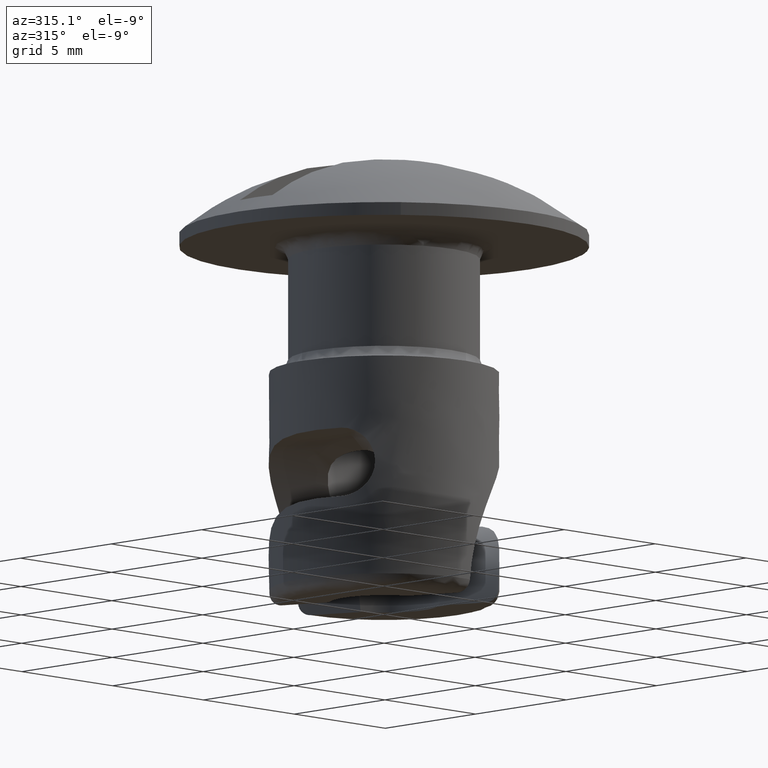
[diagram: clean part render]
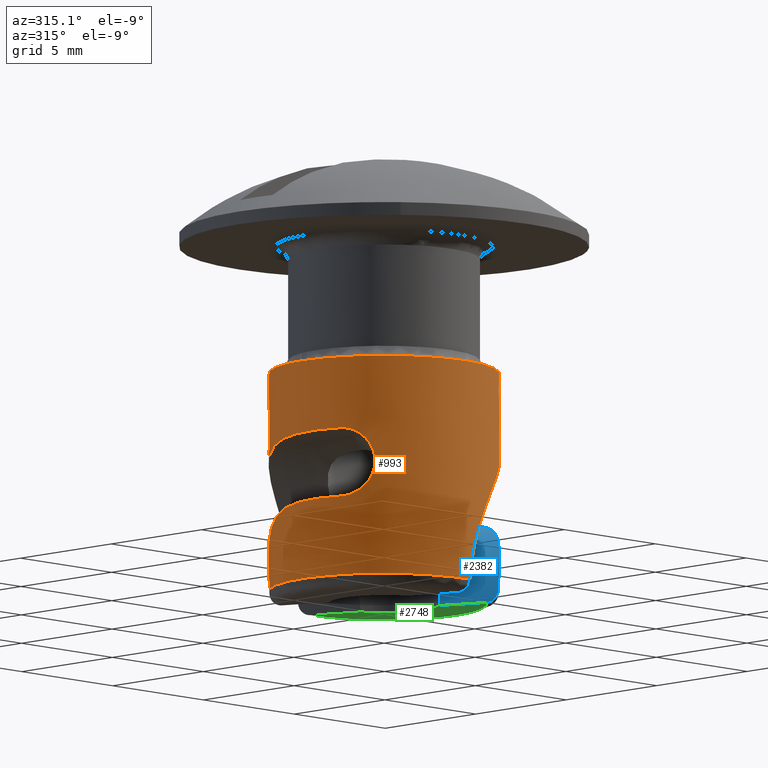
[diagram: same view with three faces highlighted in distinct colors, each labeled with its STEP entity id]
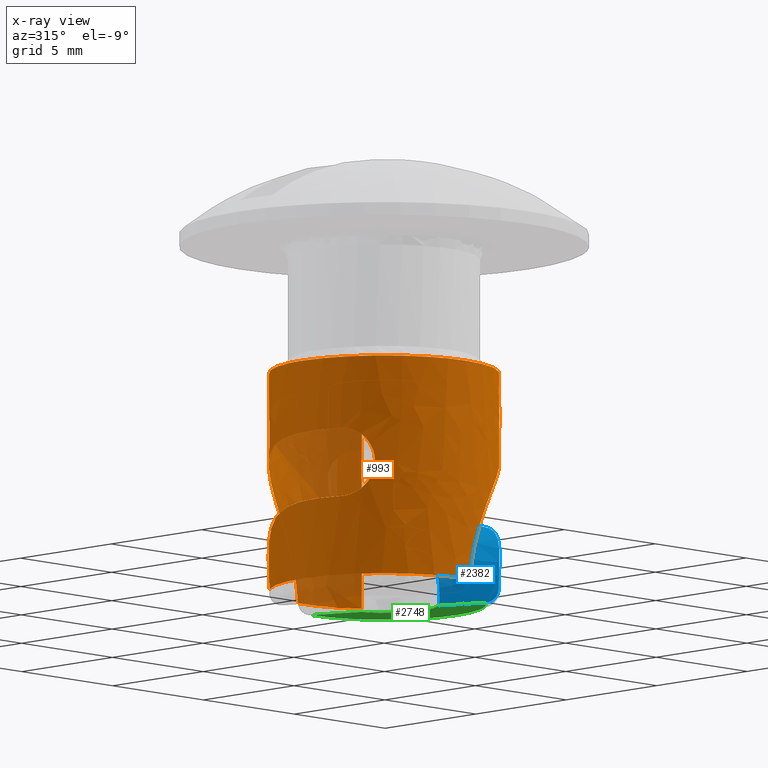
[diagram: x-ray of the same camera — body ghosted, the three highlighted faces saturated]
A machine part, auxiliary view with three faces highlighted in distinct colors.
The next image is the same camera in x-ray (body ghosted, the three faces saturated) — at least one of them is partly hidden behind the body in this view.
Their STEP definitions:

[orange] entity #993 — the highlighted face is a freeform B-spline surface patch.
#636=CARTESIAN_POINT('',(2.500424614555638,3.741373644388418,-13.815000000000005));
#637=CARTESIAN_POINT('',(2.283702444239493,3.886212813283292,-13.814999999999998));
#638=CARTESIAN_POINT('',(2.051706047068884,4.005059587124885,-13.815000000000000));
#639=CARTESIAN_POINT('',(-1.953353540056001,6.056765634193769,-13.815000000000000));
#640=CARTESIAN_POINT('',(-4.005059587124885,2.051706047068884,-13.815000000000000));
#641=CARTESIAN_POINT('',(-6.056765634193769,-1.953353540056001,-13.815000000000000));
#642=CARTESIAN_POINT('',(-2.051706047068884,-4.005059587124885,-13.815000000000000));
#643=CARTESIAN_POINT('',(1.953353540056001,-6.056765634193769,-13.815000000000000));
#644=CARTESIAN_POINT('',(4.005059587124885,-2.051706047068884,-13.815000000000000));
#645=CARTESIAN_POINT('',(2.500424614555638,3.741373644388418,-4.779624999999999));
#646=CARTESIAN_POINT('',(2.283702444239493,3.886212813283292,-4.779624999999999));
#647=CARTESIAN_POINT('',(2.051706047068884,4.005059587124885,-4.779624999999999));
#648=CARTESIAN_POINT('',(-1.953353540056001,6.056765634193769,-4.779624999999999));
#649=CARTESIAN_POINT('',(-4.005059587124885,2.051706047068884,-4.779624999999999));
#650=CARTESIAN_POINT('',(-6.056765634193769,-1.953353540056001,-4.779624999999999));
#651=CARTESIAN_POINT('',(-2.051706047068884,-4.005059587124885,-4.779624999999999));
#652=CARTESIAN_POINT('',(1.953353540056001,-6.056765634193769,-4.779624999999999));
#653=CARTESIAN_POINT('',(4.005059587124885,-2.051706047068884,-4.779624999999999));
#661=(BOUNDED_SURFACE()B_SPLINE_SURFACE(2,1,((#636,#645),(#637,#646),(#638,#647),(#639,#648),(#640,#649),(#641,#650),(#642,#651),(#643,#652),(#644,#653)),.UNSPECIFIED.,.F.,.F.,.U.)B_SPLINE_SURFACE_WITH_KNOTS((3,2,2,2,3),(2,2),(0.0,0.596467529817256,8.052311652532964,15.508155775248669,22.963999897964381),(0.0,9.035375000000002),.UNSPECIFIED.)GEOMETRIC_REPRESENTATION_ITEM()RATIONAL_B_SPLINE_SURFACE(((0.956886118190660,0.956886118190660),(0.976568542494924,0.976568542494924),(1.0,1.0),(0.707106781186548,0.707106781186548),(1.0,1.0),(0.707106781186548,0.707106781186548),(1.0,1.0),(0.707106781186548,0.707106781186548),(1.0,1.0)))REPRESENTATION_ITEM('')SURFACE());
#662=CARTESIAN_POINT('',(2.500424621410207,3.741373639807391,-13.599999999999961));
#663=VERTEX_POINT('',#662);
#664=CARTESIAN_POINT('',(-0.255835677203738,4.492721681371959,-13.600000000000000));
#665=VERTEX_POINT('',#664);
#666=CARTESIAN_POINT('',(2.500424621410207,3.741373639807391,-13.599999999999961));
#667=CARTESIAN_POINT('',(2.317893687400250,3.863373610184687,-13.599999999999911));
#668=CARTESIAN_POINT('',(1.921724138150536,4.088076606777895,-13.600000000000071));
#669=CARTESIAN_POINT('',(1.339952353562898,4.310078844276482,-13.599999999999870));
#670=CARTESIAN_POINT('',(0.609204677771750,4.481814725748259,-13.599999999999991));
#671=CARTESIAN_POINT('',(0.091854901922973,4.512593047788100,-13.599999999999969));
#672=CARTESIAN_POINT('',(-0.255835677203738,4.492721681371959,-13.600000000000000));
#673=B_SPLINE_CURVE_WITH_KNOTS('',3,(#666,#667,#668,#669,#670,#671,#672),.UNSPECIFIED.,.F.,.U.,(4,1,1,1,4),(1.925549E-009,0.658645651175664,1.362718129592707,1.862377391120710,2.907126849070455),.UNSPECIFIED.);
#674=EDGE_CURVE('',#663,#665,#673,.T.);
#675=ORIENTED_EDGE('',*,*,#674,.T.);
#676=CARTESIAN_POINT('',(-4.138067084196240,-1.768163116539770,-7.800013149771270));
#677=VERTEX_POINT('',#676);
#678=CARTESIAN_POINT('',(-4.138067084196239,-1.768163116539770,-7.800013149771282));
#679=CARTESIAN_POINT('',(-4.162120584269072,-1.711870234972437,-7.799980936402172));
#680=CARTESIAN_POINT('',(-4.185139499410874,-1.654804810093842,-7.800007726619280));
#681=CARTESIAN_POINT('',(-4.228739943453012,-1.539977298431326,-7.800182116171027));
#682=CARTESIAN_POINT('',(-4.249293794694857,-1.482305999990158,-7.800329297643393));
#683=CARTESIAN_POINT('',(-4.307279568646926,-1.308532782345519,-7.800964110782364));
#684=CARTESIAN_POINT('',(-4.341041762639190,-1.191672736446710,-7.801640629501315));
#685=CARTESIAN_POINT('',(-4.427918872501649,-0.838119586703208,-7.804698178833389));
#686=CARTESIAN_POINT('',(-4.466718190352323,-0.598471889287403,-7.808029505165068));
#687=CARTESIAN_POINT('',(-4.495625889447172,-0.232986825175194,-7.817355387114366));
#688=CARTESIAN_POINT('',(-4.500322625997480,-0.109668659982697,-7.821229586705404));
#689=CARTESIAN_POINT('',(-4.499642523005721,0.134714951679389,-7.830921266458306));
#690=CARTESIAN_POINT('',(-4.494335427102560,0.256174361046527,-7.836742732970178));
#691=CARTESIAN_POINT('',(-4.463896065566552,0.618333934121716,-7.858062208427452));
#692=CARTESIAN_POINT('',(-4.424327082497261,0.856832240254242,-7.877337504827367));
#693=CARTESIAN_POINT('',(-4.350743935625671,1.150957941420994,-7.911838674140928));
#694=CARTESIAN_POINT('',(-4.334814689617869,1.209581884264863,-7.919265392161298));
#695=CARTESIAN_POINT('',(-4.300503849941263,1.326413723055130,-7.935301400341892));
#696=CARTESIAN_POINT('',(-4.282114856965355,1.384615700621657,-7.943914657398845));
#697=CARTESIAN_POINT('',(-4.223890846989503,1.556733522258692,-7.971420175291101));
#698=CARTESIAN_POINT('',(-4.180827555734906,1.668791145467516,-7.992057946746737));
#699=CARTESIAN_POINT('',(-4.039648508606130,1.996990655673842,-8.061951742246583));
#700=CARTESIAN_POINT('',(-3.929583822020176,2.205192509550785,-8.119136251935283));
#701=CARTESIAN_POINT('',(-3.773776541470442,2.451941486598168,-8.208057012388881));
#702=CARTESIAN_POINT('',(-3.741700470887511,2.500613439011614,-8.226717228558709));
#703=CARTESIAN_POINT('',(-3.675750000041189,2.596584664978693,-8.265913419215378));
#704=CARTESIAN_POINT('',(-3.641869995164323,2.643877430368745,-8.286456191801182));
#705=CARTESIAN_POINT('',(-3.538775313720353,2.782137486352727,-8.350333165430998));
#706=CARTESIAN_POINT('',(-3.467742085032230,2.870038461614258,-8.396130262340710));
#707=CARTESIAN_POINT('',(-3.248844148161698,3.121607832311861,-8.543691025892171));
#708=CARTESIAN_POINT('',(-3.095198507710278,3.273172924070218,-8.655602838315224));
#709=CARTESIAN_POINT('',(-2.896704805394872,3.444103068284200,-8.814420091456926));
#710=CARTESIAN_POINT('',(-2.856591886879266,3.477431959422742,-8.847208277497392));
#711=CARTESIAN_POINT('',(-2.776290280585695,3.541872741717936,-8.914321510181123));
#712=CARTESIAN_POINT('',(-2.736134122483446,3.572965362421573,-8.948615439626774));
#713=CARTESIAN_POINT('',(-2.615760547592370,3.663037322603954,-9.053706294606053));
#714=CARTESIAN_POINT('',(-2.535639431553039,3.718814849784418,-9.126711032528247));
#715=CARTESIAN_POINT('',(-2.296479495805420,3.874582142714253,-9.354578910618113));
#716=CARTESIAN_POINT('',(-2.138645657105517,3.963043453159894,-9.518273065862680));
#717=CARTESIAN_POINT('',(-1.830242256679664,4.114575547994461,-9.869846666436306));
#718=CARTESIAN_POINT('',(-1.682894094861581,4.176100746619118,-10.054070370533690));
#719=CARTESIAN_POINT('',(-1.404564652593712,4.277750357035464,-10.438010981697280));
#720=CARTESIAN_POINT('',(-1.273440856920383,4.317900534791948,-10.637878852002011));
#721=CARTESIAN_POINT('',(-1.090499434697305,4.366324557798301,-10.949686213454410));
#722=CARTESIAN_POINT('',(-1.031813648960731,4.380488236283285,-11.055628109112391));
#723=CARTESIAN_POINT('',(-0.947483372539950,4.399216340140572,-11.217618955006120));
#724=CARTESIAN_POINT('',(-0.919952989225038,4.405046146309106,-11.272208084229780));
#725=CARTESIAN_POINT('',(-0.866447850351114,4.415881925065333,-11.381855236338410));
#726=CARTESIAN_POINT('',(-0.840452383810333,4.420893358609323,-11.436947718881919));
#727=CARTESIAN_POINT('',(-0.714288498860547,4.444133740423609,-11.713753923246941));
#728=CARTESIAN_POINT('',(-0.625529803047436,4.456969036458675,-11.939486281545831));
#729=CARTESIAN_POINT('',(-0.473567650921273,4.475666900748183,-12.399715568056390));
#730=CARTESIAN_POINT('',(-0.410363110978917,4.481524401880755,-12.634212372694879));
#731=CARTESIAN_POINT('',(-0.336222601784927,4.487490286777812,-12.992915035678280));
#732=CARTESIAN_POINT('',(-0.314924447559078,4.489001255570255,-13.113940034361770));
#733=CARTESIAN_POINT('',(-0.279805911397655,4.491327012379374,-13.356505007957781));
#734=CARTESIAN_POINT('',(-0.265953313907210,4.492145537862232,-13.478096892140780));
#735=CARTESIAN_POINT('',(-0.255835677203738,4.492721681371959,-13.600000000000000));
#736=B_SPLINE_CURVE_WITH_KNOTS('',3,(#678,#679,#680,#681,#682,#683,#684,#685,#686,#687,#688,#689,#690,#691,#692,#693,#694,#695,#696,#697,#698,#699,#700,#701,#702,#703,#704,#705,#706,#707,#708,#709,#710,#711,#712,#713,#714,#715,#716,#717,#718,#719,#720,#721,#722,#723,#724,#725,#726,#727,#728,#729,#730,#731,#732,#733,#734,#735),.UNSPECIFIED.,.F.,.U.,(4,2,2,2,2,2,2,2,2,2,2,2,2,2,2,2,2,2,2,2,2,2,2,2,2,2,2,2,4),(0.0,0.015625000000000,0.031250000000000,0.062500000000000,0.124999999999999,0.156249999999999,0.187499999999999,0.249999999999999,0.265624999999999,0.281249999999999,0.312499999999999,0.374999999999999,0.390624999999999,0.406249999999999,0.437499999999999,0.499999999999999,0.515624999999999,0.531250000000000,0.562500000000000,0.625000000000000,0.687500000000000,0.750000000000001,0.781250000000001,0.796875000000001,0.812500000000001,0.875000000000000,0.937500000000000,0.968750000000000,1.0),.UNSPECIFIED.);
#737=EDGE_CURVE('',#677,#665,#736,.T.);
#738=ORIENTED_EDGE('',*,*,#737,.F.);
#739=CARTESIAN_POINT('',(-3.415381198139435,-2.930046291681350,-9.170462200892130));
#740=VERTEX_POINT('',#739);
#741=CARTESIAN_POINT('',(-4.138067084196240,-1.768163116539770,-7.800013149771270));
#742=CARTESIAN_POINT('',(-4.102541713172385,-1.851303844401668,-7.800060726709595));
#743=CARTESIAN_POINT('',(-4.065165760879489,-1.931852949697245,-7.809233237699530));
#744=CARTESIAN_POINT('',(-4.006647248863185,-2.049069287224636,-7.836010289384630));
#745=CARTESIAN_POINT('',(-3.986732312869701,-2.087537167938669,-7.847122783823727));
#746=CARTESIAN_POINT('',(-3.946146796107014,-2.163277935351614,-7.873810659168158));
#747=CARTESIAN_POINT('',(-3.925515551303551,-2.200460772988973,-7.889387940334794));
#748=CARTESIAN_POINT('',(-3.864047971951118,-2.307798322734312,-7.941709687551088));
#749=CARTESIAN_POINT('',(-3.823165163859459,-2.374644334663888,-7.984269859036838));
#750=CARTESIAN_POINT('',(-3.762766440123774,-2.468394339171396,-8.059503605531198));
#751=CARTESIAN_POINT('',(-3.742700634400656,-2.498678001110207,-8.086641080301975));
#752=CARTESIAN_POINT('',(-3.703793107336875,-2.555996167841224,-8.143759301832455));
#753=CARTESIAN_POINT('',(-3.684885201104128,-2.583140956090979,-8.173801872152760));
#754=CARTESIAN_POINT('',(-3.629991790121330,-2.660290243761955,-8.268286436362697));
#755=CARTESIAN_POINT('',(-3.595745260727948,-2.706138452807791,-8.337201084492218));
#756=CARTESIAN_POINT('',(-3.533876387058073,-2.786447018481747,-8.486491024522550));
#757=CARTESIAN_POINT('',(-3.507103599031713,-2.819831620189123,-8.564786027632742));
#758=CARTESIAN_POINT('',(-3.473875371948747,-2.860506319746184,-8.687631841679595));
#759=CARTESIAN_POINT('',(-3.463960285180557,-2.872483544934630,-8.729487731523722));
#760=CARTESIAN_POINT('',(-3.446647801500773,-2.893233745420214,-8.815086096206162));
#761=CARTESIAN_POINT('',(-3.439245722064782,-2.902011828181659,-8.858964221553952));
#762=CARTESIAN_POINT('',(-3.421493946064818,-2.922963278529156,-8.990919675742081));
#763=CARTESIAN_POINT('',(-3.415381198139474,-2.930046291681307,-9.080072810121012));
#764=CARTESIAN_POINT('',(-3.415381198139435,-2.930046291681350,-9.170462200892130));
#765=B_SPLINE_CURVE_WITH_KNOTS('',3,(#741,#742,#743,#744,#745,#746,#747,#748,#749,#750,#751,#752,#753,#754,#755,#756,#757,#758,#759,#760,#761,#762,#763,#764),.UNSPECIFIED.,.F.,.U.,(4,2,2,2,2,2,2,2,2,2,2,4),(0.0,0.125000000000000,0.187500000000000,0.250000000000001,0.375000000000001,0.437500000000001,0.500000000000002,0.625000000000000,0.749999999999998,0.812499999999999,0.874999999999999,1.0),.UNSPECIFIED.);
#766=EDGE_CURVE('',#677,#740,#765,.T.);
#767=ORIENTED_EDGE('',*,*,#766,.T.);
#768=CARTESIAN_POINT('',(-4.138063032500230,-1.768172598773950,-10.500023073641000));
#769=VERTEX_POINT('',#768);
#770=CARTESIAN_POINT('',(-3.415381198139435,-2.930046291681350,-9.170462200892130));
#771=CARTESIAN_POINT('',(-3.415618111906396,-2.929770135353187,-9.259604149095711));
#772=CARTESIAN_POINT('',(-3.421802148648600,-2.922602217950092,-9.347148882050890));
#773=CARTESIAN_POINT('',(-3.439512623059471,-2.901695423891055,-9.476149680890154));
#774=CARTESIAN_POINT('',(-3.446827758385332,-2.893019825841162,-9.518761326745056));
#775=CARTESIAN_POINT('',(-3.464267687394060,-2.872113280976762,-9.603189871157522));
#776=CARTESIAN_POINT('',(-3.474402374465611,-2.859867888620435,-9.644951943884438));
#777=CARTESIAN_POINT('',(-3.508141900050062,-2.818546648421335,-9.766199624288481));
#778=CARTESIAN_POINT('',(-3.535247653966999,-2.784711758777321,-9.842672204286263));
#779=CARTESIAN_POINT('',(-3.581852498570305,-2.724147860721733,-9.951012674900053));
#780=CARTESIAN_POINT('',(-3.598480234863444,-2.702180540303497,-9.986229597393773));
#781=CARTESIAN_POINT('',(-3.632980998450351,-2.655614568795040,-10.053260037088579));
#782=CARTESIAN_POINT('',(-3.650872648321685,-2.630996495479197,-10.085156901132180));
#783=CARTESIAN_POINT('',(-3.706165272343248,-2.553114487841415,-10.176165713531409));
#784=CARTESIAN_POINT('',(-3.745219186163716,-2.495786046597178,-10.230704012580899));
#785=CARTESIAN_POINT('',(-3.826236821502214,-2.369710220381093,-10.326903364266171));
#786=CARTESIAN_POINT('',(-3.866977766849986,-2.302853133142500,-10.367145568063110));
#787=CARTESIAN_POINT('',(-3.927648570783168,-2.196642689414692,-10.416242275744111));
#788=CARTESIAN_POINT('',(-3.947801955843742,-2.160246039993669,-10.430715041272951));
#789=CARTESIAN_POINT('',(-3.987865882469913,-2.085360625720275,-10.455782793777670));
#790=CARTESIAN_POINT('',(-4.007822241790288,-2.046766439954767,-10.466379040938049));
#791=CARTESIAN_POINT('',(-4.066045450838849,-1.929985056358960,-10.491636514053480));
#792=CARTESIAN_POINT('',(-4.103043213706785,-1.850129652997324,-10.500105350716600));
#793=CARTESIAN_POINT('',(-4.138063032500230,-1.768172598773950,-10.500023073641000));
#794=B_SPLINE_CURVE_WITH_KNOTS('',3,(#770,#771,#772,#773,#774,#775,#776,#777,#778,#779,#780,#781,#782,#783,#784,#785,#786,#787,#788,#789,#790,#791,#792,#793),.UNSPECIFIED.,.F.,.U.,(4,2,2,2,2,2,2,2,2,2,2,4),(0.0,0.125000000000003,0.187500000000003,0.250000000000003,0.375000000000000,0.437500000000000,0.500000000000000,0.625000000000000,0.750000000000000,0.812500000000000,0.875000000000000,1.0),.UNSPECIFIED.);
#795=EDGE_CURVE('',#740,#769,#794,.T.);
#796=ORIENTED_EDGE('',*,*,#795,.T.);
#797=CARTESIAN_POINT('',(-2.793620478200035,3.527844189272170,-13.600000000000000));
#798=VERTEX_POINT('',#797);
#799=CARTESIAN_POINT('',(-4.138063032500227,-1.768172598773948,-10.500023073641030));
#800=CARTESIAN_POINT('',(-4.168328122547390,-1.697343059629244,-10.499951967530370));
#801=CARTESIAN_POINT('',(-4.196950333338537,-1.625285357311612,-10.500044636555129));
#802=CARTESIAN_POINT('',(-4.250164566732098,-1.480555891851754,-10.500567398503071));
#803=CARTESIAN_POINT('',(-4.274812127535018,-1.407782667573173,-10.500996533212650));
#804=CARTESIAN_POINT('',(-4.342984774426201,-1.188261885470461,-10.502852634212971));
#805=CARTESIAN_POINT('',(-4.380754387644679,-1.040315831254365,-10.504828674120240));
#806=CARTESIAN_POINT('',(-4.441143681764539,-0.741288629043694,-10.511080713071211));
#807=CARTESIAN_POINT('',(-4.463763264744651,-0.590207390359402,-10.515353666511951));
#808=CARTESIAN_POINT('',(-4.486134514660717,-0.361218670889993,-10.524602076307570));
#809=CARTESIAN_POINT('',(-4.491661619841208,-0.284493983436658,-10.528163484463651));
#810=CARTESIAN_POINT('',(-4.498777330749271,-0.130243856295352,-10.536504436332461));
#811=CARTESIAN_POINT('',(-4.500338507362023,-0.053143946064788,-10.541264284197251));
#812=CARTESIAN_POINT('',(-4.498339757953023,0.329961785059228,-10.568487095256151));
#813=CARTESIAN_POINT('',(-4.465683664315761,0.631085748863214,-10.600936686695270));
#814=CARTESIAN_POINT('',(-4.388289797123107,0.999287318404937,-10.667967968747149));
#815=CARTESIAN_POINT('',(-4.370970281357150,1.072512220493023,-10.682725082710061));
#816=CARTESIAN_POINT('',(-4.332662924779252,1.218070459315709,-10.715399876922460));
#817=CARTESIAN_POINT('',(-4.311581235456067,1.290682636090796,-10.733398817823399));
#818=CARTESIAN_POINT('',(-4.243668090614531,1.504546046112450,-10.792213331712039));
#819=CARTESIAN_POINT('',(-4.192241071672137,1.641866666112213,-10.837772360911529));
#820=CARTESIAN_POINT('',(-4.079059008771930,1.905751546047316,-10.944236953607399));
#821=CARTESIAN_POINT('',(-4.017296254000811,2.032316319778377,-11.005133266200669));
#822=CARTESIAN_POINT('',(-3.918414839228302,2.213768247068121,-11.110348923946020));
#823=CARTESIAN_POINT('',(-3.884330653253193,2.272967812627681,-11.147847850228690));
#824=CARTESIAN_POINT('',(-3.815589623160803,2.386563036810773,-11.226497587743861));
#825=CARTESIAN_POINT('',(-3.780804210438521,2.441210681898063,-11.267778528935690));
#826=CARTESIAN_POINT('',(-3.675787335686595,2.598951278330825,-11.397663843540970));
#827=CARTESIAN_POINT('',(-3.604895060350068,2.695852464828309,-11.492299435833051));
#828=CARTESIAN_POINT('',(-3.499500987527408,2.829613942812518,-11.647167593241729));
#829=CARTESIAN_POINT('',(-3.464526585961289,2.872266783003243,-11.700945192161180));
#830=CARTESIAN_POINT('',(-3.395276965364713,2.953803525294153,-11.812992119372391));
#831=CARTESIAN_POINT('',(-3.361120331420273,2.992538066379298,-11.871097952697779));
#832=CARTESIAN_POINT('',(-3.261910400238422,3.101547417802913,-12.049294494813500));
#833=CARTESIAN_POINT('',(-3.199575595285785,3.165305594559938,-12.174112463457980));
#834=CARTESIAN_POINT('',(-3.113381378354224,3.249379520330362,-12.370255798345889));
#835=CARTESIAN_POINT('',(-3.085867189602424,3.275468912893022,-12.437126429712620));
#836=CARTESIAN_POINT('',(-3.033543951179641,3.323986162344055,-12.573873624699351));
#837=CARTESIAN_POINT('',(-3.008652015758912,3.346486413382994,-12.644014838357471));
#838=CARTESIAN_POINT('',(-2.939165877684682,3.408098738446786,-12.856815575831980));
#839=CARTESIAN_POINT('',(-2.899769784620650,3.441376515818135,-13.001570141731589));
#840=CARTESIAN_POINT('',(-2.835529941852476,3.494496684256767,-13.296614324691721));
#841=CARTESIAN_POINT('',(-2.810680969913993,3.514334369545658,-13.446903671405041));
#842=CARTESIAN_POINT('',(-2.793620478200035,3.527844189272170,-13.600000000000000));
#843=B_SPLINE_CURVE_WITH_KNOTS('',3,(#799,#800,#801,#802,#803,#804,#805,#806,#807,#808,#809,#810,#811,#812,#813,#814,#815,#816,#817,#818,#819,#820,#821,#822,#823,#824,#825,#826,#827,#828,#829,#830,#831,#832,#833,#834,#835,#836,#837,#838,#839,#840,#841,#842),.UNSPECIFIED.,.F.,.U.,(4,2,2,2,2,2,2,2,2,2,2,2,2,2,2,2,2,2,2,2,2,4),(0.0,0.031250000000000,0.062500000000000,0.125000000000000,0.187500000000000,0.218750000000000,0.250000000000000,0.375000000000000,0.406250000000000,0.437500000000000,0.500000000000000,0.562500000000000,0.593750000000000,0.625000000000000,0.687500000000000,0.718750000000000,0.750000000000000,0.812500000000000,0.843750000000000,0.875000000000000,0.937500000000000,1.0),.UNSPECIFIED.);
#844=EDGE_CURVE('',#769,#798,#843,.T.);
#845=ORIENTED_EDGE('',*,*,#844,.T.);
#846=CARTESIAN_POINT('',(0.255835677203739,-4.492721681371959,-13.600000000000000));
#847=VERTEX_POINT('',#846);
#848=CARTESIAN_POINT('',(-2.793620478200035,3.527844189272170,-13.600000000000000));
#849=CARTESIAN_POINT('',(-2.985287397805704,3.376084589811251,-13.600000000000000));
#850=CARTESIAN_POINT('',(-3.376402992247499,3.010791660181311,-13.599999999999980));
#851=CARTESIAN_POINT('',(-3.835297667204303,2.396714940550720,-13.600000000000010));
#852=CARTESIAN_POINT('',(-4.134082406714509,1.806783197011497,-13.599999999999969));
#853=CARTESIAN_POINT('',(-4.327431583726060,1.269439730163682,-13.599999999999969));
#854=CARTESIAN_POINT('',(-4.470742016794580,0.662440040197553,-13.600000000000110));
#855=CARTESIAN_POINT('',(-4.521641047949454,-0.050079979059999,-13.599999999999691));
#856=CARTESIAN_POINT('',(-4.455445693249097,-0.715503063573249,-13.600000000000550));
#857=CARTESIAN_POINT('',(-4.321591995652412,-1.293668304277464,-13.599999999999049));
#858=CARTESIAN_POINT('',(-4.113655957570702,-1.865999026740768,-13.600000000000630));
#859=CARTESIAN_POINT('',(-3.772105452190399,-2.492511636167194,-13.599999999999580));
#860=CARTESIAN_POINT('',(-3.358039428795135,-3.018283963442046,-13.600000000000071));
#861=CARTESIAN_POINT('',(-2.875410660895819,-3.479744513520917,-13.599999999999939));
#862=CARTESIAN_POINT('',(-2.411986499367335,-3.815611825884654,-13.599999999999660));
#863=CARTESIAN_POINT('',(-1.895191920643154,-4.092137370438207,-13.600000000000520));
#864=CARTESIAN_POINT('',(-1.405422384935810,-4.286476437651103,-13.599999999999669));
#865=CARTESIAN_POINT('',(-0.874161987556479,-4.425950316587249,-13.600000000000120));
#866=CARTESIAN_POINT('',(-0.315057650075311,-4.500897020744229,-13.599999999999980));
#867=CARTESIAN_POINT('',(0.063533198734196,-4.503678956285107,-13.600000000000010));
#868=CARTESIAN_POINT('',(0.255835677203739,-4.492721681371959,-13.600000000000000));
#869=B_SPLINE_CURVE_WITH_KNOTS('',3,(#848,#849,#850,#851,#852,#853,#854,#855,#856,#857,#858,#859,#860,#861,#862,#863,#864,#865,#866,#867,#868),.UNSPECIFIED.,.F.,.U.,(4,1,1,1,1,1,1,1,1,1,1,1,1,1,1,1,1,1,4),(0.000000025427958,0.733420291206224,1.600193682102919,2.289173039103067,2.711448189115762,3.311524258895670,4.156079366196931,4.845050210748727,5.311773059600847,5.934059916977880,6.667491978511049,7.445366213996872,7.934318751842126,8.667745473076405,9.156697009410280,9.690097545390087,10.245727059895930,10.801350784504210,11.379193751683809),.UNSPECIFIED.);
#870=EDGE_CURVE('',#798,#847,#869,.T.);
#871=ORIENTED_EDGE('',*,*,#870,.T.);
#872=CARTESIAN_POINT('',(4.005065075704186,-2.051709767937144,-8.080848835180767));
#873=VERTEX_POINT('',#872);
#874=CARTESIAN_POINT('',(4.005065075704186,-2.051709767937144,-8.080848835180767));
#875=CARTESIAN_POINT('',(3.943339355540231,-2.172208781201602,-8.113144947599663));
#876=CARTESIAN_POINT('',(3.876542370826476,-2.289181153341390,-8.149408258224693));
#877=CARTESIAN_POINT('',(3.773771376901418,-2.451937861394224,-8.208060667503840));
#878=CARTESIAN_POINT('',(3.741695343175940,-2.500609839679293,-8.226720857588580));
#879=CARTESIAN_POINT('',(3.675744947525495,-2.596581118429168,-8.265916995026952));
#880=CARTESIAN_POINT('',(3.641864980991648,-2.643873910733617,-8.286459740476293));
#881=CARTESIAN_POINT('',(3.538770415549995,-2.782134048143959,-8.350336632007910));
#882=CARTESIAN_POINT('',(3.467737265914015,-2.870035078895143,-8.396133672970134));
#883=CARTESIAN_POINT('',(3.248839571398713,-3.121604619710936,-8.543694264999784));
#884=CARTESIAN_POINT('',(3.095194099437456,-3.273169829738833,-8.655605958177473));
#885=CARTESIAN_POINT('',(2.896700616718432,-3.444100128095720,-8.814423055904461));
#886=CARTESIAN_POINT('',(2.856587742673387,-3.477429050449810,-8.847211210471825));
#887=CARTESIAN_POINT('',(2.776286225682399,-3.541869895429823,-8.914324379953532));
#888=CARTESIAN_POINT('',(2.736130112375454,-3.572962547576958,-8.948618277696250));
#889=CARTESIAN_POINT('',(2.615756672302458,-3.663034602393186,-9.053709037260873));
#890=CARTESIAN_POINT('',(2.535635646717832,-3.718812193067187,-9.126713711165653));
#891=CARTESIAN_POINT('',(2.296475984071499,-3.874579677697017,-9.354581395973836));
#892=CARTESIAN_POINT('',(2.138642329750929,-3.963041117565401,-9.518275420727813));
#893=CARTESIAN_POINT('',(1.830239302853755,-4.114573474593702,-9.869848756944384));
#894=CARTESIAN_POINT('',(1.682891326303015,-4.176098803264428,-10.054072329922700));
#895=CARTESIAN_POINT('',(1.404562251542712,-4.277748671648064,-10.438012680990550));
#896=CARTESIAN_POINT('',(1.273438638263735,-4.317898977433959,-10.637880422209530));
#897=CARTESIAN_POINT('',(1.090497488115368,-4.366323191419717,-10.949687591106780));
#898=CARTESIAN_POINT('',(1.031811792816200,-4.380486933386094,-11.055629422759591));
#899=CARTESIAN_POINT('',(0.947481651725769,-4.399215132236809,-11.217620172876110));
#900=CARTESIAN_POINT('',(0.919951313530347,-4.405044970076399,-11.272209270167410));
#901=CARTESIAN_POINT('',(0.866446264329112,-4.415880811777237,-11.381856358812080));
#902=CARTESIAN_POINT('',(0.840450842371826,-4.420892276616048,-11.436948809802560));
#903=CARTESIAN_POINT('',(0.714287179120226,-4.444132814048572,-11.713754857265361));
#904=CARTESIAN_POINT('',(0.625528656783643,-4.456968231853296,-11.939487092789889));
#905=CARTESIAN_POINT('',(0.473566844664832,-4.475666334806666,-12.399716138667410));
#906=CARTESIAN_POINT('',(0.410362471252333,-4.481523952832765,-12.634212825447900));
#907=CARTESIAN_POINT('',(0.336222206899970,-4.487490009593309,-12.992915315149791));
#908=CARTESIAN_POINT('',(0.314924133649345,-4.489001035225286,-13.113940256524771));
#909=CARTESIAN_POINT('',(0.279805756540586,-4.491326903679411,-13.356505117554610));
#910=CARTESIAN_POINT('',(0.265953237172448,-4.492145483999236,-13.478096946448190));
#911=CARTESIAN_POINT('',(0.255835677203739,-4.492721681371959,-13.600000000000000));
#912=B_SPLINE_CURVE_WITH_KNOTS('',3,(#874,#875,#876,#877,#878,#879,#880,#881,#882,#883,#884,#885,#886,#887,#888,#889,#890,#891,#892,#893,#894,#895,#896,#897,#898,#899,#900,#901,#902,#903,#904,#905,#906,#907,#908,#909,#910,#911),.UNSPECIFIED.,.F.,.U.,(4,2,2,2,2,2,2,2,2,2,2,2,2,2,2,2,2,2,4),(0.339093433662571,0.374999999999999,0.390624999999999,0.406249999999999,0.437499999999999,0.499999999999999,0.515624999999999,0.531250000000000,0.562500000000000,0.625000000000000,0.687500000000000,0.750000000000001,0.781250000000001,0.796875000000001,0.812500000000001,0.875000000000000,0.937500000000000,0.968750000000000,1.0),.UNSPECIFIED.);
#913=EDGE_CURVE('',#873,#847,#912,.T.);
#914=ORIENTED_EDGE('',*,*,#913,.F.);
#915=CARTESIAN_POINT('',(4.005059613483995,-2.051706084407150,-4.999999999966261));
#916=VERTEX_POINT('',#915);
#917=CARTESIAN_POINT('',(4.005065075704186,-2.051709767937144,-8.080848835180767));
#918=CARTESIAN_POINT('',(4.005059613483995,-2.051706084407150,-4.999999999966261));
#919=QUASI_UNIFORM_CURVE('',1,(#917,#918),.UNSPECIFIED.,.F.,.U.);
#920=EDGE_CURVE('',#873,#916,#919,.T.);
#921=ORIENTED_EDGE('',*,*,#920,.T.);
#922=CARTESIAN_POINT('',(0.000000199531659,-4.499999999999996,-5.0));
#923=VERTEX_POINT('',#922);
#924=CARTESIAN_POINT('',(0.000000199531659,-4.499999999999996,-5.0));
#925=CARTESIAN_POINT('',(0.347225374445360,-4.500084276546153,-4.999999999997077));
#926=CARTESIAN_POINT('',(0.848721989248025,-4.441649528185629,-4.999999999992856));
#927=CARTESIAN_POINT('',(1.504061849735674,-4.251109188553205,-4.999999999987324));
#928=CARTESIAN_POINT('',(2.074996128929918,-4.013541250767503,-4.999999999982569));
#929=CARTESIAN_POINT('',(2.626041094429768,-3.676684473263752,-4.999999999977807));
#930=CARTESIAN_POINT('',(3.097789590667225,-3.276863095574214,-4.999999999974009));
#931=CARTESIAN_POINT('',(3.566165735520965,-2.780476237479936,-4.999999999969860));
#932=CARTESIAN_POINT('',(3.846822333014787,-2.360779214622130,-4.999999999967666));
#933=CARTESIAN_POINT('',(4.005059613483995,-2.051706084407150,-4.999999999966261));
#934=B_SPLINE_CURVE_WITH_KNOTS('',3,(#924,#925,#926,#927,#928,#929,#930,#931,#932,#933),.UNSPECIFIED.,.F.,.U.,(4,1,1,1,1,1,1,4),(2.443718E-009,1.041650422527793,1.504608903684662,2.044726977162392,2.893471900989890,3.433589974468201,3.896548455624979,4.938198875709558),.UNSPECIFIED.);
#935=EDGE_CURVE('',#923,#916,#934,.T.);
#936=ORIENTED_EDGE('',*,*,#935,.F.);
#937=CARTESIAN_POINT('',(-4.500000000000000,0.0,-5.0));
#938=VERTEX_POINT('',#937);
#939=CARTESIAN_POINT('',(-4.500000000000000,0.0,-5.0));
#940=CARTESIAN_POINT('',(-4.500052744852380,-0.312936601427019,-5.000000000000004));
#941=CARTESIAN_POINT('',(-4.446967572574513,-0.819126354778439,-4.999999999999996));
#942=CARTESIAN_POINT('',(-4.238053745725908,-1.565165513950329,-4.999999999999992));
#943=CARTESIAN_POINT('',(-3.966683787999966,-2.162472609163638,-5.000000000000030));
#944=CARTESIAN_POINT('',(-3.612937938485601,-2.702549551415971,-4.999999999999961));
#945=CARTESIAN_POINT('',(-3.218257175802253,-3.165819933905433,-5.000000000000020));
#946=CARTESIAN_POINT('',(-2.735509821233976,-3.595341931301139,-4.999999999999965));
#947=CARTESIAN_POINT('',(-2.107516029363350,-4.001171129985579,-5.000000000000009));
#948=CARTESIAN_POINT('',(-1.409793039712561,-4.297749542585641,-5.000000000000018));
#949=CARTESIAN_POINT('',(-0.681082380088882,-4.466050230711910,-4.999999999999872));
#950=CARTESIAN_POINT('',(-0.220891309928308,-4.500010123994557,-5.000000000000269));
#951=CARTESIAN_POINT('',(0.000000199531659,-4.499999999999996,-5.0));
#952=B_SPLINE_CURVE_WITH_KNOTS('',3,(#939,#940,#941,#942,#943,#944,#945,#946,#947,#948,#949,#950,#951),.UNSPECIFIED.,.F.,.U.,(4,1,1,1,1,1,1,1,1,1,4),(0.000000011814667,0.938796935335811,1.518642999229638,2.319384982705726,2.899229292033102,3.451465284928702,4.141751430438495,4.832046372003482,5.688010521611405,6.405919597892757,7.068594671592562),.UNSPECIFIED.);
#953=EDGE_CURVE('',#938,#923,#952,.T.);
#954=ORIENTED_EDGE('',*,*,#953,.F.);
#955=CARTESIAN_POINT('',(-0.000000199531739,4.499999999999996,-5.0));
#956=VERTEX_POINT('',#955);
#957=CARTESIAN_POINT('',(-0.000000199531739,4.499999999999996,-5.0));
#958=CARTESIAN_POINT('',(-0.211688213353229,4.500010177044696,-4.999999999999990));
#959=CARTESIAN_POINT('',(-0.607451685980818,4.472020107452479,-5.000000000000002));
#960=CARTESIAN_POINT('',(-1.248787499372582,4.340368469602740,-5.000000000000020));
#961=CARTESIAN_POINT('',(-1.917052802877644,4.096649493631611,-4.999999999999986));
#962=CARTESIAN_POINT('',(-2.524868812569489,3.744873601293480,-5.000000000000010));
#963=CARTESIAN_POINT('',(-3.029954351355916,3.343143368039302,-4.999999999999996));
#964=CARTESIAN_POINT('',(-3.487389435372591,2.874384214716483,-5.000000000000004));
#965=CARTESIAN_POINT('',(-3.859933937925410,2.345405857806554,-4.999999999999999));
#966=CARTESIAN_POINT('',(-4.129303484714418,1.810201257279291,-5.000000000000002));
#967=CARTESIAN_POINT('',(-4.300901137724414,1.352864424080786,-5.0));
#968=CARTESIAN_POINT('',(-4.454649188609076,0.754704700164314,-4.999999999999998));
#969=CARTESIAN_POINT('',(-4.500041618574281,0.294527848747048,-5.000000000000002));
#970=CARTESIAN_POINT('',(-4.500000000000000,0.0,-5.0));
#971=B_SPLINE_CURVE_WITH_KNOTS('',3,(#957,#958,#959,#960,#961,#962,#963,#964,#965,#966,#967,#968,#969,#970),.UNSPECIFIED.,.F.,.U.,(4,1,1,1,1,1,1,1,1,1,1,4),(0.000000011845457,0.635063246838812,1.187302829703095,1.960430862389788,2.761174545929280,3.285798112542863,3.893249229962954,4.721597303099985,5.218610308801991,5.688010340594635,6.185020891511621,7.068594446673442),.UNSPECIFIED.);
#972=EDGE_CURVE('',#956,#938,#971,.T.);
#973=ORIENTED_EDGE('',*,*,#972,.F.);
#974=CARTESIAN_POINT('',(2.500424595194246,3.741373601893073,-5.000000000000001));
#975=VERTEX_POINT('',#974);
#976=CARTESIAN_POINT('',(2.500424595194246,3.741373601893073,-5.000000000000001));
#977=CARTESIAN_POINT('',(2.322486277263574,3.860306029726158,-5.000000000000007));
#978=CARTESIAN_POINT('',(1.985678430855152,4.052145977138630,-4.999999999999977));
#979=CARTESIAN_POINT('',(1.422568959151480,4.282917154347513,-5.000000000000018));
#980=CARTESIAN_POINT('',(0.773244013516385,4.454094811418599,-4.999999999999989));
#981=CARTESIAN_POINT('',(0.276163035014724,4.500028800007878,-5.000000000000002));
#982=CARTESIAN_POINT('',(-0.000000199531739,4.499999999999996,-5.0));
#983=B_SPLINE_CURVE_WITH_KNOTS('',3,(#976,#977,#978,#979,#980,#981,#982),.UNSPECIFIED.,.F.,.U.,(4,1,1,1,4),(1.461595E-009,0.642075985834279,1.159880546896528,1.822666639901438,2.651152592515819),.UNSPECIFIED.);
#984=EDGE_CURVE('',#975,#956,#983,.T.);
#985=ORIENTED_EDGE('',*,*,#984,.F.);
#986=CARTESIAN_POINT('',(2.500424621410207,3.741373639807391,-13.599999999999961));
#987=CARTESIAN_POINT('',(2.500424595194246,3.741373601893073,-5.000000000000001));
#988=QUASI_UNIFORM_CURVE('',1,(#986,#987),.UNSPECIFIED.,.F.,.U.);
#989=EDGE_CURVE('',#663,#975,#988,.T.);
#990=ORIENTED_EDGE('',*,*,#989,.F.);
#991=EDGE_LOOP('',(#675,#738,#767,#796,#845,#871,#914,#921,#936,#954,#973,#985,#990));
#992=FACE_OUTER_BOUND('',#991,.T.);
#993=ADVANCED_FACE('',(#992),#661,.T.);

[blue] entity #2382 — the highlighted face is a freeform B-spline surface patch.
#116=CARTESIAN_POINT('',(1.812775825419190,-1.246532713881128,-14.100000000000000));
#117=VERTEX_POINT('',#116);
#135=CARTESIAN_POINT('',(2.012873778885560,0.887884649194348,-11.595919423287040));
#136=VERTEX_POINT('',#135);
#137=CARTESIAN_POINT('',(1.812775825419175,-1.246532713881122,-14.100000000000000));
#138=CARTESIAN_POINT('',(1.812410618136805,-1.247063818219882,-13.942188868994990));
#139=CARTESIAN_POINT('',(1.819073827026197,-1.237546713274811,-13.786684972134161));
#140=CARTESIAN_POINT('',(1.845075822453525,-1.198435090068072,-13.480151398929671));
#141=CARTESIAN_POINT('',(1.864433727716224,-1.168851650508301,-13.329121847610219));
#142=CARTESIAN_POINT('',(1.895336825932624,-1.117069278462624,-13.143371512430210));
#143=CARTESIAN_POINT('',(1.901850310643416,-1.105962810069813,-13.106374610925050));
#144=CARTESIAN_POINT('',(1.915499908396510,-1.082149916732861,-13.032698866104210));
#145=CARTESIAN_POINT('',(1.922656327030748,-1.069405907429061,-12.995923705162401));
#146=CARTESIAN_POINT('',(1.944792569397024,-1.028944725862514,-12.887017448803970));
#147=CARTESIAN_POINT('',(1.960446097914545,-0.999005405916996,-12.816237070999360));
#148=CARTESIAN_POINT('',(2.009030383013117,-0.899577531760969,-12.609497313952239));
#149=CARTESIAN_POINT('',(2.043696608127037,-0.820616287498681,-12.479091936329850));
#150=CARTESIAN_POINT('',(2.093440665352591,-0.678257259447998,-12.295903158434781));
#151=CARTESIAN_POINT('',(2.109390444592161,-0.627378402392573,-12.237739907891079));
#152=CARTESIAN_POINT('',(2.138559219289011,-0.519322802425769,-12.128197608805550));
#153=CARTESIAN_POINT('',(2.151825966837919,-0.462022211834052,-12.076653698480071));
#154=CARTESIAN_POINT('',(2.168734072445429,-0.370873835637893,-12.004238006264190));
#155=CARTESIAN_POINT('',(2.173869877446801,-0.339623487135161,-11.980917168890221));
#156=CARTESIAN_POINT('',(2.182946113274252,-0.275319130510851,-11.935936691300791));
#157=CARTESIAN_POINT('',(2.186886308913639,-0.242198231716473,-11.914248172571019));
#158=CARTESIAN_POINT('',(2.196460623662854,-0.141730642207790,-11.852721541041570));
#159=CARTESIAN_POINT('',(2.199934900083337,-0.072787678388577,-11.816038930971960));
#160=CARTESIAN_POINT('',(2.200063290856231,0.068797724938595,-11.750856409971201));
#161=CARTESIAN_POINT('',(2.196723465206875,0.141438510523537,-11.722352797745970));
#162=CARTESIAN_POINT('',(2.185708695021827,0.253134764934384,-11.685660736129330));
#163=CARTESIAN_POINT('',(2.181004361142310,0.291005371272153,-11.674398437046060));
#164=CARTESIAN_POINT('',(2.169565460829461,0.366674052268316,-11.654197192379710));
#165=CARTESIAN_POINT('',(2.162850350299087,0.404419618546134,-11.645258372277681));
#166=CARTESIAN_POINT('',(2.139684087050877,0.517358164366600,-11.621774213927891));
#167=CARTESIAN_POINT('',(2.120221062363987,0.592251863671858,-11.610537659287560));
#168=CARTESIAN_POINT('',(2.084720334452701,0.703893481251307,-11.600126897997830));
#169=CARTESIAN_POINT('',(2.071833630027911,0.740991177832636,-11.597736445006650));
#170=CARTESIAN_POINT('',(2.043877303159098,0.814940541249186,-11.595158810099390));
#171=CARTESIAN_POINT('',(2.028787430191259,0.851807697679712,-11.594984850439840));
#172=CARTESIAN_POINT('',(2.012873778885560,0.887884649194348,-11.595919423287040));
#173=B_SPLINE_CURVE_WITH_KNOTS('',3,(#137,#138,#139,#140,#141,#142,#143,#144,#145,#146,#147,#148,#149,#150,#151,#152,#153,#154,#155,#156,#157,#158,#159,#160,#161,#162,#163,#164,#165,#166,#167,#168,#169,#170,#171,#172),.UNSPECIFIED.,.F.,.U.,(4,2,2,2,2,2,2,2,2,2,2,2,2,2,2,2,2,4),(0.0,0.124999999999999,0.249999999999999,0.281249999999999,0.312499999999998,0.374999999999998,0.499999999999997,0.562499999999996,0.624999999999995,0.656249999999995,0.687499999999995,0.749999999999996,0.812499999999997,0.843749999999997,0.874999999999998,0.937499999999999,0.968750000000000,1.0),.UNSPECIFIED.);
#174=EDGE_CURVE('',#117,#136,#173,.T.);
#586=CARTESIAN_POINT('',(4.005058311718505,-2.051708158077639,-11.019212330594620));
#587=VERTEX_POINT('',#586);
#588=CARTESIAN_POINT('',(2.793620478200035,-3.527844189272170,-13.600000000000000));
#589=VERTEX_POINT('',#588);
#590=CARTESIAN_POINT('',(4.005058311718505,-2.051708158077639,-11.019212330594620));
#591=CARTESIAN_POINT('',(3.987496345656321,-2.085990408487857,-11.037218645996919));
#592=CARTESIAN_POINT('',(3.969595381235082,-2.119849799111527,-11.055897858013520));
#593=CARTESIAN_POINT('',(3.918416308548038,-2.213765736239004,-11.110355137346190));
#594=CARTESIAN_POINT('',(3.884332088519011,-2.272965359991186,-11.147853919623030));
#595=CARTESIAN_POINT('',(3.815590989861525,-2.386560701340907,-11.226503367192869));
#596=CARTESIAN_POINT('',(3.780805542497628,-2.441208405625098,-11.267784161893630));
#597=CARTESIAN_POINT('',(3.675788562727396,-2.598949181517110,-11.397669032401740));
#598=CARTESIAN_POINT('',(3.604896215922723,-2.695850490142066,-11.492304322472201));
#599=CARTESIAN_POINT('',(3.499502033620447,-2.829612155209182,-11.647172016917880));
#600=CARTESIAN_POINT('',(3.464527595181114,-2.872265058410247,-11.700949459909360));
#601=CARTESIAN_POINT('',(3.395277900055429,-2.953801928059317,-11.812996071954871));
#602=CARTESIAN_POINT('',(3.361121228573828,-2.992536533289384,-11.871101746544630));
#603=CARTESIAN_POINT('',(3.261911185468950,-3.101546075971300,-12.049297815364760));
#604=CARTESIAN_POINT('',(3.199576306238084,-3.165304379657769,-12.174115469904450));
#605=CARTESIAN_POINT('',(3.113381978328853,-3.249378495071033,-12.370258335494460));
#606=CARTESIAN_POINT('',(3.085867752658073,-3.275467950722240,-12.437128810739690));
#607=CARTESIAN_POINT('',(3.033544440536948,-3.323985326111787,-12.573875694073839));
#608=CARTESIAN_POINT('',(3.008652468202382,-3.346485640230485,-12.644016751632210));
#609=CARTESIAN_POINT('',(2.939166220722530,-3.408098152250741,-12.856817026456630));
#610=CARTESIAN_POINT('',(2.899770056602026,-3.441376051046076,-13.001571291875480));
#611=CARTESIAN_POINT('',(2.835530075221671,-3.494496456350444,-13.296614888678000));
#612=CARTESIAN_POINT('',(2.810681035727677,-3.514334257080746,-13.446903949715299));
#613=CARTESIAN_POINT('',(2.793620478200035,-3.527844189272170,-13.600000000000000));
#614=B_SPLINE_CURVE_WITH_KNOTS('',3,(#590,#591,#592,#593,#594,#595,#596,#597,#598,#599,#600,#601,#602,#603,#604,#605,#606,#607,#608,#609,#610,#611,#612,#613),.UNSPECIFIED.,.F.,.U.,(4,2,2,2,2,2,2,2,2,2,2,4),(0.545226895388163,0.562500000000000,0.593750000000000,0.625000000000000,0.687500000000000,0.718750000000000,0.750000000000000,0.812500000000000,0.843750000000000,0.875000000000000,0.937500000000000,1.0),.UNSPECIFIED.);
#615=EDGE_CURVE('',#587,#589,#614,.T.);
#1107=CARTESIAN_POINT('',(4.138063032500230,1.768172598773950,-10.500023073641000));
#1108=VERTEX_POINT('',#1107);
#1136=CARTESIAN_POINT('',(4.138063032500230,1.768172598773950,-10.500023073641000));
#1137=CARTESIAN_POINT('',(4.168328150432394,1.697343107280190,-10.499952085449319));
#1138=CARTESIAN_POINT('',(4.196950389631192,1.625285453506626,-10.500044874603210));
#1139=CARTESIAN_POINT('',(4.250164680159909,1.480556085681483,-10.500567878161990));
#1140=CARTESIAN_POINT('',(4.274812269730062,1.407782910561438,-10.500997134521301));
#1141=CARTESIAN_POINT('',(4.342985003514217,1.188262276944723,-10.502853602971120));
#1142=CARTESIAN_POINT('',(4.380754675447392,1.040316323062520,-10.504829891168740));
#1143=CARTESIAN_POINT('',(4.441144088585507,0.741289324234744,-10.511082433419320));
#1144=CARTESIAN_POINT('',(4.463763731869051,0.590208188599235,-10.515355641868780));
#1145=CARTESIAN_POINT('',(4.486135073501362,0.361219625858015,-10.524604439510370));
#1146=CARTESIAN_POINT('',(4.491662209464720,0.284494991007606,-10.528165977839800));
#1147=CARTESIAN_POINT('',(4.498777982379557,0.130244969825821,-10.536507191920370));
#1148=CARTESIAN_POINT('',(4.500339190045448,0.053145112660034,-10.541267171101421));
#1149=CARTESIAN_POINT('',(4.498340595267786,-0.329960354224104,-10.568490636059110));
#1150=CARTESIAN_POINT('',(4.465684624204934,-0.631084108568305,-10.600940745835960));
#1151=CARTESIAN_POINT('',(4.388290908898389,-0.999285418561300,-10.667972670177710));
#1152=CARTESIAN_POINT('',(4.370971423442620,-1.072510268854192,-10.682729912315130));
#1153=CARTESIAN_POINT('',(4.332664127351494,-1.218068404314795,-10.715404962311551));
#1154=CARTESIAN_POINT('',(4.311582468322063,-1.290680529322769,-10.733404031317511));
#1155=CARTESIAN_POINT('',(4.243669413100450,-1.504543786198511,-10.792218924187260));
#1156=CARTESIAN_POINT('',(4.192242452234828,-1.641864306954490,-10.837778198979480));
#1157=CARTESIAN_POINT('',(4.094700531475990,-1.869284131629228,-10.929531410503630));
#1158=CARTESIAN_POINT('',(4.051041459290901,-1.961945648514578,-10.972065275405990));
#1159=CARTESIAN_POINT('',(4.005058311718505,-2.051708158077639,-11.019212330594620));
#1160=B_SPLINE_CURVE_WITH_KNOTS('',3,(#1136,#1137,#1138,#1139,#1140,#1141,#1142,#1143,#1144,#1145,#1146,#1147,#1148,#1149,#1150,#1151,#1152,#1153,#1154,#1155,#1156,#1157,#1158,#1159),.UNSPECIFIED.,.F.,.U.,(4,2,2,2,2,2,2,2,2,2,2,4),(0.0,0.031250000000000,0.062500000000000,0.125000000000000,0.187500000000000,0.218750000000000,0.250000000000000,0.375000000000000,0.406250000000000,0.437500000000000,0.500000000000000,0.545226895388163),.UNSPECIFIED.);
#1161=EDGE_CURVE('',#1108,#587,#1160,.T.);
#2190=CARTESIAN_POINT('',(4.138063032500230,1.768172598773950,-10.500023073641000));
#2191=CARTESIAN_POINT('',(3.950723049988635,1.690573681607080,-10.516850112989140));
#2192=CARTESIAN_POINT('',(3.665507598198370,1.572433219315290,-10.569125902084510));
#2193=CARTESIAN_POINT('',(3.239743128497114,1.396074995175431,-10.710500212437960));
#2194=CARTESIAN_POINT('',(2.819818149527111,1.222135314999587,-10.909931304931970));
#2195=CARTESIAN_POINT('',(2.386749602296673,1.042750928004666,-11.213439260868951));
#2196=CARTESIAN_POINT('',(2.121298030446207,0.932796029208745,-11.473537541437230));
#2197=CARTESIAN_POINT('',(2.012873778885560,0.887884649194348,-11.595919423287040));
#2198=B_SPLINE_CURVE_WITH_KNOTS('',3,(#2190,#2191,#2192,#2193,#2194,#2195,#2196,#2197),.UNSPECIFIED.,.F.,.U.,(4,1,1,1,1,4),(2.708993E-009,0.610414109179380,0.935969367414228,1.444646447594241,2.095755798762342,2.604434105385458),.UNSPECIFIED.);
#2199=EDGE_CURVE('',#1108,#136,#2198,.T.);
#2334=CARTESIAN_POINT('',(1.049221163169503,0.607210666997785,-14.257017134386480));
#2335=CARTESIAN_POINT('',(2.809580792238404,-3.642673428494795,-14.257017134386480));
#2336=CARTESIAN_POINT('',(0.890006890659550,0.541261956068148,-10.597686174809802));
#2337=CARTESIAN_POINT('',(2.650366519728451,-3.708622139424430,-10.597686174809802));
#2338=CARTESIAN_POINT('',(4.273051630279497,1.942564967902547,-10.489244266332619));
#2339=CARTESIAN_POINT('',(6.033411259348397,-2.307319127590032,-10.489244266332619));
#2347=(BOUNDED_SURFACE()B_SPLINE_SURFACE(1,2,((#2334,#2336,#2338),(#2335,#2337,#2339)),.UNSPECIFIED.,.F.,.F.,.U.)B_SPLINE_SURFACE_WITH_KNOTS((2,2),(3,3),(0.0,4.600041396419861),(0.0,6.038421145320761),.UNSPECIFIED.)GEOMETRIC_REPRESENTATION_ITEM()RATIONAL_B_SPLINE_SURFACE(((1.0,0.700909264299851,1.0),(1.0,0.700909264299851,1.0)))REPRESENTATION_ITEM('')SURFACE());
#2348=ORIENTED_EDGE('',*,*,#615,.F.);
#2349=ORIENTED_EDGE('',*,*,#1161,.F.);
#2350=ORIENTED_EDGE('',*,*,#2199,.T.);
#2351=ORIENTED_EDGE('',*,*,#174,.F.);
#2352=CARTESIAN_POINT('',(2.567081411835560,-3.067587492641140,-14.100000000000000));
#2353=VERTEX_POINT('',#2352);
#2354=CARTESIAN_POINT('',(1.812775825419190,-1.246532713881128,-14.100000000000000));
#2355=CARTESIAN_POINT('',(2.567081411835560,-3.067587492641140,-14.100000000000000));
#2356=QUASI_UNIFORM_CURVE('',1,(#2354,#2355),.UNSPECIFIED.,.F.,.U.);
#2357=EDGE_CURVE('',#117,#2353,#2356,.T.);
#2358=ORIENTED_EDGE('',*,*,#2357,.T.);
#2359=CARTESIAN_POINT('',(2.793620478200035,-3.527844189272170,-13.600000000000000));
#2360=CARTESIAN_POINT('',(2.789903798512059,-3.530787344335198,-13.633352497946460));
#2361=CARTESIAN_POINT('',(2.785303165965372,-3.530207134414155,-13.666299941760530));
#2362=CARTESIAN_POINT('',(2.774313234701561,-3.522154608180162,-13.731393209000201));
#2363=CARTESIAN_POINT('',(2.767831427371851,-3.514512845298055,-13.763872588863711));
#2364=CARTESIAN_POINT('',(2.753443721895162,-3.492870947528895,-13.825203877809541));
#2365=CARTESIAN_POINT('',(2.745516102203657,-3.478915548135261,-13.854315445250620));
#2366=CARTESIAN_POINT('',(2.727983818350048,-3.444833840834262,-13.909418506634321));
#2367=CARTESIAN_POINT('',(2.718548013612375,-3.425022710054168,-13.934817559307250));
#2368=CARTESIAN_POINT('',(2.698555939836945,-3.381076247171891,-13.980562608616109));
#2369=CARTESIAN_POINT('',(2.687821652637023,-3.356539624930957,-14.001259684076681));
#2370=CARTESIAN_POINT('',(2.665545998352085,-3.304530334382029,-14.036743419875281));
#2371=CARTESIAN_POINT('',(2.654023357519018,-3.277119598370005,-14.051595013987679));
#2372=CARTESIAN_POINT('',(2.630045943968390,-3.219653270722017,-14.075699503657150));
#2373=CARTESIAN_POINT('',(2.617582725218616,-3.189574062914110,-14.084872801267510));
#2374=CARTESIAN_POINT('',(2.592581692236544,-3.129187764657990,-14.096953038428570));
#2375=CARTESIAN_POINT('',(2.579922836019370,-3.098589433096479,-14.099999999999991));
#2376=CARTESIAN_POINT('',(2.567081411835560,-3.067587492641140,-14.100000000000000));
#2377=B_SPLINE_CURVE_WITH_KNOTS('',3,(#2359,#2360,#2361,#2362,#2363,#2364,#2365,#2366,#2367,#2368,#2369,#2370,#2371,#2372,#2373,#2374,#2375,#2376),.UNSPECIFIED.,.F.,.U.,(4,2,2,2,2,2,2,2,4),(0.0,0.125000000000000,0.250000000000000,0.375000000000000,0.500000000000000,0.625000000000000,0.750000000000000,0.875000000000000,1.0),.UNSPECIFIED.);
#2378=EDGE_CURVE('',#589,#2353,#2377,.T.);
#2379=ORIENTED_EDGE('',*,*,#2378,.F.);
#2380=EDGE_LOOP('',(#2348,#2349,#2350,#2351,#2358,#2379));
#2381=FACE_OUTER_BOUND('',#2380,.T.);
#2382=ADVANCED_FACE('',(#2381),#2347,.T.);

[green] entity #2748 — the highlighted face is a freeform B-spline surface patch.
#83=CARTESIAN_POINT('',(0.772819371805389,2.059793732042685,-14.100000000000000));
#84=VERTEX_POINT('',#83);
#116=CARTESIAN_POINT('',(1.812775825419190,-1.246532713881128,-14.100000000000000));
#117=VERTEX_POINT('',#116);
#118=CARTESIAN_POINT('',(1.812775825419190,-1.246532713881128,-14.100000000000000));
#119=CARTESIAN_POINT('',(1.895244509693499,-1.126640334989700,-14.099999999999991));
#120=CARTESIAN_POINT('',(2.006018306423748,-0.925309086211129,-14.099999999999980));
#121=CARTESIAN_POINT('',(2.131803348677974,-0.577786484381107,-14.100000000000060));
#122=CARTESIAN_POINT('',(2.203597710307669,-0.214124209491573,-14.099999999999991));
#123=CARTESIAN_POINT('',(2.203610439909931,0.245474978713619,-14.099999999999961));
#124=CARTESIAN_POINT('',(2.104860123474603,0.695231704225484,-14.099999999999939));
#125=CARTESIAN_POINT('',(1.937698013938741,1.060837785261259,-14.100000000000151));
#126=CARTESIAN_POINT('',(1.762399157890670,1.325675142957613,-14.099999999999790));
#127=CARTESIAN_POINT('',(1.573427873077792,1.547709741751939,-14.099999999999980));
#128=CARTESIAN_POINT('',(1.351509856788420,1.745296692913532,-14.100000000000270));
#129=CARTESIAN_POINT('',(1.078112418314139,1.926654248425196,-14.099999999999330));
#130=CARTESIAN_POINT('',(0.884736179085726,2.017813061477091,-14.100000000000870));
#131=CARTESIAN_POINT('',(0.772819371805389,2.059793732042685,-14.100000000000000));
#132=B_SPLINE_CURVE_WITH_KNOTS('',3,(#118,#119,#120,#121,#122,#123,#124,#125,#126,#127,#128,#129,#130,#131),.UNSPECIFIED.,.F.,.U.,(4,1,1,1,1,1,1,1,1,1,1,4),(0.000000019812625,0.436546828659047,0.686009609957410,1.106971961635268,1.543525834477571,2.058023041437452,2.478987648503622,2.744037701648872,3.009089679241496,3.352096408526772,3.632737508984221,3.991330957084217),.UNSPECIFIED.);
#133=EDGE_CURVE('',#117,#84,#132,.T.);
#2301=CARTESIAN_POINT('',(-0.030791286977417,3.999881485325070,-14.100000000000000));
#2302=VERTEX_POINT('',#2301);
#2326=CARTESIAN_POINT('',(0.772819371805389,2.059793732042685,-14.100000000000000));
#2327=CARTESIAN_POINT('',(-0.030791286977417,3.999881485325070,-14.100000000000000));
#2328=QUASI_UNIFORM_CURVE('',1,(#2326,#2327),.UNSPECIFIED.,.F.,.U.);
#2329=EDGE_CURVE('',#84,#2302,#2328,.T.);
#2352=CARTESIAN_POINT('',(2.567081411835560,-3.067587492641140,-14.100000000000000));
#2353=VERTEX_POINT('',#2352);
#2354=CARTESIAN_POINT('',(1.812775825419190,-1.246532713881128,-14.100000000000000));
#2355=CARTESIAN_POINT('',(2.567081411835560,-3.067587492641140,-14.100000000000000));
#2356=QUASI_UNIFORM_CURVE('',1,(#2354,#2355),.UNSPECIFIED.,.F.,.U.);
#2357=EDGE_CURVE('',#117,#2353,#2356,.T.);
#2463=CARTESIAN_POINT('',(-0.030791286977417,3.999881485325070,-14.100000000000000));
#2464=CARTESIAN_POINT('',(0.033073044825157,4.000373431894034,-14.099999999999991));
#2465=CARTESIAN_POINT('',(0.103333084336789,3.999228547559788,-14.100000000000030));
#2466=CARTESIAN_POINT('',(0.179900448545339,3.995981657472377,-14.100000000000000));
#2467=CARTESIAN_POINT('',(0.199030844777774,3.994982735515836,-14.100000000000000));
#2468=CARTESIAN_POINT('',(0.224547947019152,3.993749969815528,-14.100000000000000));
#2469=CARTESIAN_POINT('',(0.390313341284670,3.983875798599494,-14.100000000000000));
#2470=CARTESIAN_POINT('',(0.752324446022019,3.940514636964559,-14.100000000000019));
#2471=CARTESIAN_POINT('',(1.254916912487861,3.811671397548747,-14.099999999999969));
#2472=CARTESIAN_POINT('',(1.716585389438769,3.621954779292030,-14.100000000000060));
#2473=CARTESIAN_POINT('',(2.131810851732978,3.395093420930948,-14.099999999999950));
#2474=CARTESIAN_POINT('',(2.591910665569823,3.070110761973617,-14.100000000000049));
#2475=CARTESIAN_POINT('',(2.994154411251166,2.673898595656565,-14.099999999999740));
#2476=CARTESIAN_POINT('',(3.342037366619846,2.215487176137489,-14.100000000000239));
#2477=CARTESIAN_POINT('',(3.503766944397288,1.939182891340638,-14.099999999999859));
#2478=CARTESIAN_POINT('',(3.591230728012793,1.761561160820393,-14.100000000000010));
#2479=CARTESIAN_POINT('',(3.596768043521525,1.750049987612807,-14.100000000000000));
#2480=CARTESIAN_POINT('',(3.605230228665902,1.732858639722790,-14.100000000000000));
#2481=CARTESIAN_POINT('',(3.613365741668170,1.715510462637908,-14.100000000000000));
#2482=CARTESIAN_POINT('',(3.621666441421658,1.698240762247018,-14.100000000000000));
#2483=CARTESIAN_POINT('',(3.629634727796633,1.680815243013868,-14.099999999999991));
#2484=CARTESIAN_POINT('',(3.637769067572905,1.663466749223054,-14.100000000000000));
#2485=CARTESIAN_POINT('',(3.645572673288854,1.645967032549294,-14.100000000000000));
#2486=CARTESIAN_POINT('',(3.656174831953873,1.622726944268474,-14.100000000000000));
#2487=CARTESIAN_POINT('',(3.666321891893719,1.599283845540380,-14.100000000000000));
#2488=CARTESIAN_POINT('',(3.679064377632028,1.570005345879504,-14.100000000000080));
#2489=CARTESIAN_POINT('',(3.751202130094002,1.399415408634967,-14.099999999999520));
#2490=CARTESIAN_POINT('',(3.870460900599190,1.054716782618533,-14.100000000000071));
#2491=CARTESIAN_POINT('',(3.966496275856218,0.584264672440197,-14.100000000000041));
#2492=CARTESIAN_POINT('',(4.007805124727449,0.093661013336674,-14.099999999999969));
#2493=CARTESIAN_POINT('',(3.991187148660464,-0.443772928947175,-14.100000000000019));
#2494=CARTESIAN_POINT('',(3.883144467185183,-1.023553792139064,-14.099999999999991));
#2495=CARTESIAN_POINT('',(3.666936360471016,-1.639632215688827,-14.100000000000019));
#2496=CARTESIAN_POINT('',(3.349783999624627,-2.226368357102784,-14.099999999999991));
#2497=CARTESIAN_POINT('',(3.044216283046903,-2.606101741716179,-14.100000000000019));
#2498=CARTESIAN_POINT('',(2.871059968018976,-2.785146675075977,-14.099999999999991));
#2499=CARTESIAN_POINT('',(2.862096152875683,-2.794247829268266,-14.100000000000000));
#2500=CARTESIAN_POINT('',(2.848773545077598,-2.808019471890102,-14.100000000000000));
#2501=CARTESIAN_POINT('',(2.835192983597117,-2.821536616423774,-14.100000000000000));
#2502=CARTESIAN_POINT('',(2.821742081197284,-2.835182732290800,-14.100000000000000));
#2503=CARTESIAN_POINT('',(2.808032236673676,-2.848568605035418,-14.100000000000000));
#2504=CARTESIAN_POINT('',(2.794450977848753,-2.862084755230170,-14.100000000000000));
#2505=CARTESIAN_POINT('',(2.780614090349550,-2.875339005443094,-14.100000000000000));
#2506=CARTESIAN_POINT('',(2.762329698049403,-2.893177208683126,-14.100000000000000));
#2507=CARTESIAN_POINT('',(2.743669735854599,-2.910622744939733,-14.100000000000000));
#2508=CARTESIAN_POINT('',(2.725111851788791,-2.928176408319966,-14.100000000000000));
#2509=CARTESIAN_POINT('',(2.710963511085379,-2.941099271170073,-14.100000000000000));
#2510=CARTESIAN_POINT('',(2.696936450290832,-2.954153570977011,-14.099999999999991));
#2511=CARTESIAN_POINT('',(2.682661893442983,-2.966936678992083,-14.100000000000000));
#2512=CARTESIAN_POINT('',(2.668510547322398,-2.979855866773673,-14.100000000000000));
#2513=CARTESIAN_POINT('',(2.654114330389790,-2.992501499989718,-14.100000000000010));
#2514=CARTESIAN_POINT('',(2.639840033368368,-3.005284364968773,-14.099999999999991));
#2515=CARTESIAN_POINT('',(2.625323505160235,-3.017791347073665,-14.100000000000000));
#2516=CARTESIAN_POINT('',(2.610925730573340,-3.030434490864483,-14.099999999996140));
#2517=CARTESIAN_POINT('',(2.591429412005799,-3.046938399270693,-14.100000000015790));
#2518=CARTESIAN_POINT('',(2.576916729019342,-3.059442104091840,-14.099999999974180));
#2519=CARTESIAN_POINT('',(2.567081411835560,-3.067587492641140,-14.100000000000000));
#2520=B_SPLINE_CURVE_WITH_KNOTS('',3,(#2463,#2464,#2465,#2466,#2467,#2468,#2469,#2470,#2471,#2472,#2473,#2474,#2475,#2476,#2477,#2478,#2479,#2480,#2481,#2482,#2483,#2484,#2485,#2486,#2487,#2488,#2489,#2490,#2491,#2492,#2493,#2494,#2495,#2496,#2497,#2498,#2499,#2500,#2501,#2502,#2503,#2504,#2505,#2506,#2507,#2508,#2509,#2510,#2511,#2512,#2513,#2514,#2515,#2516,#2517,#2518,#2519),.UNSPECIFIED.,.F.,.U.,(4,1,1,1,1,1,1,1,1,1,1,1,1,2,1,1,1,1,1,1,1,1,1,1,1,1,1,1,1,1,1,1,2,1,1,1,1,1,1,1,1,1,1,1,1,1,1,1,1,1,1,1,4),(0.000031085927786,0.191630549840967,0.210779389375523,0.229939541375090,0.249099693374671,0.287419991579951,0.728112049050786,1.341234682347725,1.839395168753468,2.222597447726090,2.759081941865999,3.525488636877090,3.908690940252831,4.483492600155936,4.502653320451750,4.521814040747574,4.540974654899647,4.560135269051720,4.579295750812697,4.598456232573673,4.617616553138117,4.636776873702572,4.675087279228967,4.694248662082933,4.732571481208939,5.230726467424857,5.786367425788076,6.169569454836143,6.706049996960575,7.395813906098033,7.932298700659496,8.660384586179720,9.388467205610395,9.407627899089578,9.426788592568757,9.445949182026606,9.465109771484451,9.484270231059977,9.503430690635497,9.522590991925977,9.541751293216457,9.580061712242713,9.599223231520581,9.618384615507567,9.637545999494554,9.656707212384713,9.675868425274874,9.695029428072603,9.714190430870330,9.733351181246581,9.752511931622832,9.771672383769731,9.809980793953875),.UNSPECIFIED.);
#2521=EDGE_CURVE('',#2302,#2353,#2520,.T.);
#2737=CARTESIAN_POINT('',(-0.232065644407714,-3.420607421703742,-14.100000000000000));
#2738=CARTESIAN_POINT('',(4.200000000211816,-3.420607421703742,-14.100000000000000));
#2739=CARTESIAN_POINT('',(-0.232065644407714,4.352901730328155,-14.100000000000000));
#2740=CARTESIAN_POINT('',(4.200000000211816,4.352901730328155,-14.100000000000000));
#2741=B_SPLINE_SURFACE_WITH_KNOTS('',1,1,((#2737,#2739),(#2738,#2740)),.UNSPECIFIED.,.F.,.F.,.U.,(2,2),(2,2),(0.0,4.432065644619530),(0.0,7.773509152031897),.UNSPECIFIED.);
#2742=ORIENTED_EDGE('',*,*,#133,.T.);
#2743=ORIENTED_EDGE('',*,*,#2329,.T.);
#2744=ORIENTED_EDGE('',*,*,#2521,.T.);
#2745=ORIENTED_EDGE('',*,*,#2357,.F.);
#2746=EDGE_LOOP('',(#2742,#2743,#2744,#2745));
#2747=FACE_OUTER_BOUND('',#2746,.T.);
#2748=ADVANCED_FACE('',(#2747),#2741,.F.);